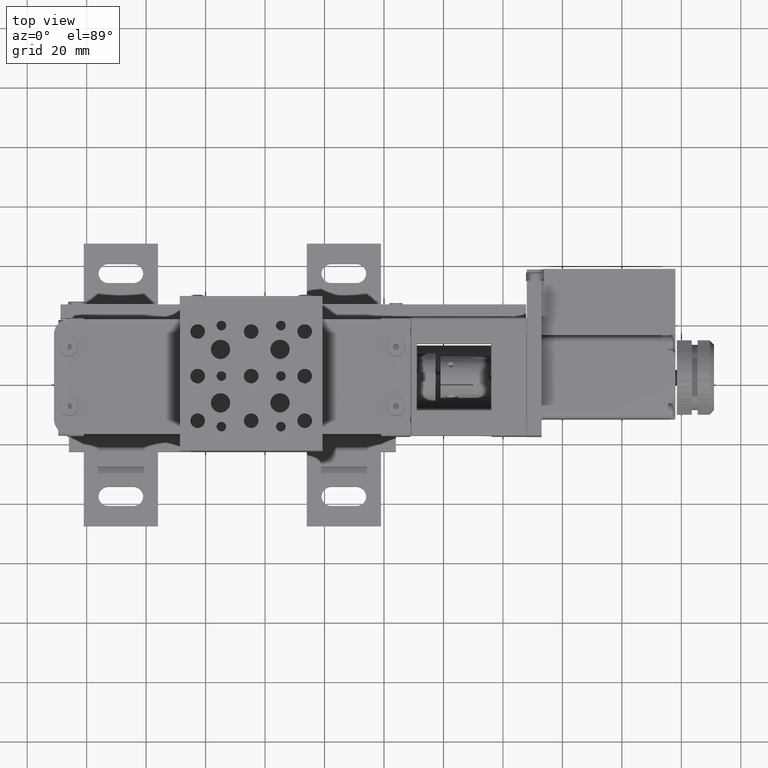
[diagram: clean part render]
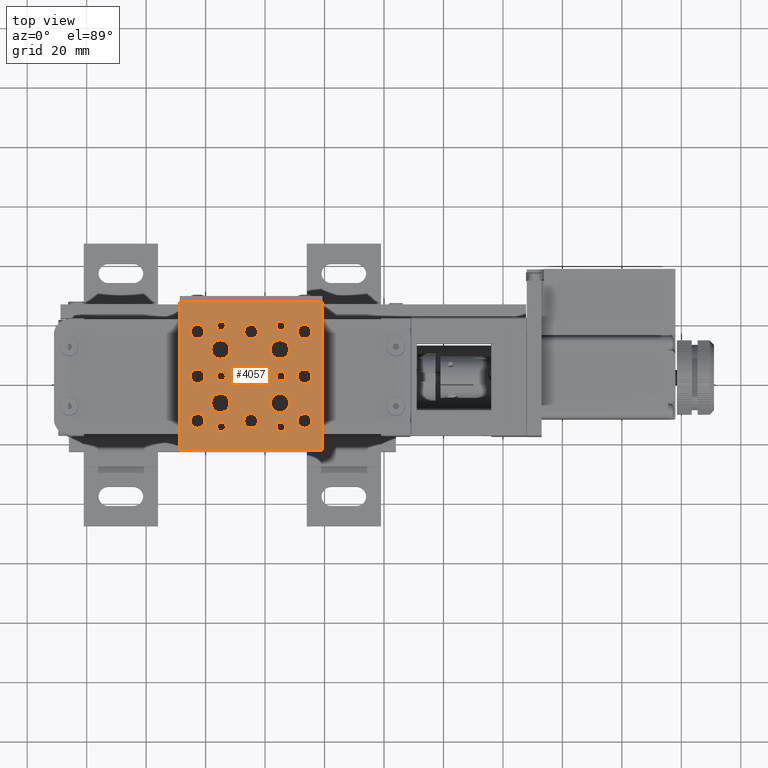
[diagram: same view with one face highlighted and labeled with its STEP entity id]
A machine part, top view. The second image highlights one B-rep face of the part: STEP entity #4057.
In plain terms, the highlighted planar face has unit normal (0, 0, 1).
Its self-contained STEP definition (entity closure, byte-faithful):
#184=FACE_BOUND('',#8873,.T.);
#185=FACE_BOUND('',#8874,.T.);
#186=FACE_BOUND('',#8875,.T.);
#187=FACE_BOUND('',#8876,.T.);
#188=FACE_BOUND('',#8877,.T.);
#189=FACE_BOUND('',#8878,.T.);
#190=FACE_BOUND('',#8879,.T.);
#191=FACE_BOUND('',#8880,.T.);
#192=FACE_BOUND('',#8881,.T.);
#193=FACE_BOUND('',#8882,.T.);
#194=FACE_BOUND('',#8883,.T.);
#195=FACE_BOUND('',#8884,.T.);
#196=FACE_BOUND('',#8885,.T.);
#197=FACE_BOUND('',#8886,.T.);
#198=FACE_BOUND('',#8887,.T.);
#199=FACE_BOUND('',#8888,.T.);
#200=FACE_BOUND('',#8889,.T.);
#201=FACE_BOUND('',#8890,.T.);
#202=FACE_BOUND('',#8891,.T.);
#1911=PLANE('',#42931);
#4057=ADVANCED_FACE('',(#6380,#184,#185,#186,#187,#188,#189,#190,#191,#192,
#193,#194,#195,#196,#197,#198,#199,#200,#201,#202),#1911,.T.);
#6380=FACE_OUTER_BOUND('',#8872,.T.);
#8872=EDGE_LOOP('',(#21142,#21143,#21144,#21145));
#8873=EDGE_LOOP('',(#21146,#21147,#21148,#21149));
#8874=EDGE_LOOP('',(#21150,#21151,#21152,#21153));
#8875=EDGE_LOOP('',(#21154,#21155,#21156,#21157));
#8876=EDGE_LOOP('',(#21158,#21159,#21160,#21161));
#8877=EDGE_LOOP('',(#21162,#21163,#21164,#21165));
#8878=EDGE_LOOP('',(#21166,#21167,#21168,#21169));
#8879=EDGE_LOOP('',(#21170,#21171,#21172,#21173));
#8880=EDGE_LOOP('',(#21174,#21175,#21176,#21177));
#8881=EDGE_LOOP('',(#21178,#21179,#21180,#21181));
#8882=EDGE_LOOP('',(#21182,#21183,#21184,#21185));
#8883=EDGE_LOOP('',(#21186,#21187,#21188,#21189));
#8884=EDGE_LOOP('',(#21190,#21191,#21192,#21193));
#8885=EDGE_LOOP('',(#21194,#21195,#21196,#21197));
#8886=EDGE_LOOP('',(#21198,#21199,#21200,#21201));
#8887=EDGE_LOOP('',(#21202,#21203,#21204,#21205));
#8888=EDGE_LOOP('',(#21206,#21207));
#8889=EDGE_LOOP('',(#21208,#21209));
#8890=EDGE_LOOP('',(#21210,#21211));
#8891=EDGE_LOOP('',(#21212,#21213));
#21142=ORIENTED_EDGE('',*,*,#28789,.F.);
#21143=ORIENTED_EDGE('',*,*,#28786,.F.);
#21144=ORIENTED_EDGE('',*,*,#28782,.F.);
#21145=ORIENTED_EDGE('',*,*,#28544,.F.);
#21146=ORIENTED_EDGE('',*,*,#28615,.T.);
#21147=ORIENTED_EDGE('',*,*,#29140,.T.);
#21148=ORIENTED_EDGE('',*,*,#28614,.T.);
#21149=ORIENTED_EDGE('',*,*,#28613,.T.);
#21150=ORIENTED_EDGE('',*,*,#28621,.T.);
#21151=ORIENTED_EDGE('',*,*,#28620,.T.);
#21152=ORIENTED_EDGE('',*,*,#28619,.T.);
#21153=ORIENTED_EDGE('',*,*,#29143,.T.);
#21154=ORIENTED_EDGE('',*,*,#28630,.T.);
#21155=ORIENTED_EDGE('',*,*,#28629,.T.);
#21156=ORIENTED_EDGE('',*,*,#28628,.T.);
#21157=ORIENTED_EDGE('',*,*,#29146,.T.);
#21158=ORIENTED_EDGE('',*,*,#28639,.T.);
#21159=ORIENTED_EDGE('',*,*,#28638,.T.);
#21160=ORIENTED_EDGE('',*,*,#28637,.T.);
#21161=ORIENTED_EDGE('',*,*,#29149,.T.);
#21162=ORIENTED_EDGE('',*,*,#28646,.T.);
#21163=ORIENTED_EDGE('',*,*,#28645,.T.);
#21164=ORIENTED_EDGE('',*,*,#28644,.T.);
#21165=ORIENTED_EDGE('',*,*,#29152,.T.);
#21166=ORIENTED_EDGE('',*,*,#28656,.T.);
#21167=ORIENTED_EDGE('',*,*,#29155,.T.);
#21168=ORIENTED_EDGE('',*,*,#28655,.T.);
#21169=ORIENTED_EDGE('',*,*,#28654,.T.);
#21170=ORIENTED_EDGE('',*,*,#28668,.T.);
#21171=ORIENTED_EDGE('',*,*,#28667,.T.);
#21172=ORIENTED_EDGE('',*,*,#28666,.T.);
#21173=ORIENTED_EDGE('',*,*,#29158,.T.);
#21174=ORIENTED_EDGE('',*,*,#28675,.T.);
#21175=ORIENTED_EDGE('',*,*,#28674,.T.);
#21176=ORIENTED_EDGE('',*,*,#28673,.T.);
#21177=ORIENTED_EDGE('',*,*,#29161,.T.);
#21178=ORIENTED_EDGE('',*,*,#28682,.T.);
#21179=ORIENTED_EDGE('',*,*,#28681,.T.);
#21180=ORIENTED_EDGE('',*,*,#28680,.T.);
#21181=ORIENTED_EDGE('',*,*,#29164,.T.);
#21182=ORIENTED_EDGE('',*,*,#28689,.T.);
#21183=ORIENTED_EDGE('',*,*,#28688,.T.);
#21184=ORIENTED_EDGE('',*,*,#28687,.T.);
#21185=ORIENTED_EDGE('',*,*,#29167,.T.);
#21186=ORIENTED_EDGE('',*,*,#28696,.T.);
#21187=ORIENTED_EDGE('',*,*,#28695,.T.);
#21188=ORIENTED_EDGE('',*,*,#28694,.T.);
#21189=ORIENTED_EDGE('',*,*,#29170,.T.);
#21190=ORIENTED_EDGE('',*,*,#28703,.T.);
#21191=ORIENTED_EDGE('',*,*,#28702,.T.);
#21192=ORIENTED_EDGE('',*,*,#28701,.T.);
#21193=ORIENTED_EDGE('',*,*,#29173,.T.);
#21194=ORIENTED_EDGE('',*,*,#28710,.T.);
#21195=ORIENTED_EDGE('',*,*,#28709,.T.);
#21196=ORIENTED_EDGE('',*,*,#28708,.T.);
#21197=ORIENTED_EDGE('',*,*,#29176,.T.);
#21198=ORIENTED_EDGE('',*,*,#28717,.T.);
#21199=ORIENTED_EDGE('',*,*,#28716,.T.);
#21200=ORIENTED_EDGE('',*,*,#28715,.T.);
#21201=ORIENTED_EDGE('',*,*,#29179,.T.);
#21202=ORIENTED_EDGE('',*,*,#28724,.T.);
#21203=ORIENTED_EDGE('',*,*,#28723,.T.);
#21204=ORIENTED_EDGE('',*,*,#28722,.T.);
#21205=ORIENTED_EDGE('',*,*,#29182,.T.);
#21206=ORIENTED_EDGE('',*,*,#28731,.T.);
#21207=ORIENTED_EDGE('',*,*,#28730,.T.);
#21208=ORIENTED_EDGE('',*,*,#28742,.T.);
#21209=ORIENTED_EDGE('',*,*,#28741,.T.);
#21210=ORIENTED_EDGE('',*,*,#28753,.T.);
#21211=ORIENTED_EDGE('',*,*,#28752,.T.);
#21212=ORIENTED_EDGE('',*,*,#28764,.T.);
#21213=ORIENTED_EDGE('',*,*,#28763,.T.);
#28544=EDGE_CURVE('',#39967,#39968,#33400,.T.);
#28613=EDGE_CURVE('',#40016,#40017,#35571,.T.);
#28614=EDGE_CURVE('',#40018,#40016,#35572,.T.);
#28615=EDGE_CURVE('',#40017,#40329,#35573,.T.);
#28619=EDGE_CURVE('',#40020,#40331,#35576,.T.);
#28620=EDGE_CURVE('',#40022,#40020,#35577,.T.);
#28621=EDGE_CURVE('',#40021,#40022,#35578,.T.);
#28628=EDGE_CURVE('',#40028,#40333,#35583,.T.);
#28629=EDGE_CURVE('',#40030,#40028,#35584,.T.);
#28630=EDGE_CURVE('',#40029,#40030,#35585,.T.);
#28637=EDGE_CURVE('',#40035,#40335,#35590,.T.);
#28638=EDGE_CURVE('',#40037,#40035,#35591,.T.);
#28639=EDGE_CURVE('',#40036,#40037,#35592,.T.);
#28644=EDGE_CURVE('',#40040,#40337,#35596,.T.);
#28645=EDGE_CURVE('',#40042,#40040,#35597,.T.);
#28646=EDGE_CURVE('',#40041,#40042,#35598,.T.);
#28654=EDGE_CURVE('',#40049,#40050,#35604,.T.);
#28655=EDGE_CURVE('',#40051,#40049,#35605,.T.);
#28656=EDGE_CURVE('',#40050,#40339,#35606,.T.);
#28666=EDGE_CURVE('',#40057,#40341,#35611,.T.);
#28667=EDGE_CURVE('',#40059,#40057,#35612,.T.);
#28668=EDGE_CURVE('',#40058,#40059,#35613,.T.);
#28673=EDGE_CURVE('',#40063,#40343,#35617,.T.);
#28674=EDGE_CURVE('',#40065,#40063,#35618,.T.);
#28675=EDGE_CURVE('',#40064,#40065,#35619,.T.);
#28680=EDGE_CURVE('',#40069,#40345,#35623,.T.);
#28681=EDGE_CURVE('',#40071,#40069,#35624,.T.);
#28682=EDGE_CURVE('',#40070,#40071,#35625,.T.);
#28687=EDGE_CURVE('',#40075,#40347,#35629,.T.);
#28688=EDGE_CURVE('',#40077,#40075,#35630,.T.);
#28689=EDGE_CURVE('',#40076,#40077,#35631,.T.);
#28694=EDGE_CURVE('',#40081,#40349,#35635,.T.);
#28695=EDGE_CURVE('',#40083,#40081,#35636,.T.);
#28696=EDGE_CURVE('',#40082,#40083,#35637,.T.);
#28701=EDGE_CURVE('',#40087,#40351,#35641,.T.);
#28702=EDGE_CURVE('',#40089,#40087,#35642,.T.);
#28703=EDGE_CURVE('',#40088,#40089,#35643,.T.);
#28708=EDGE_CURVE('',#40093,#40353,#35647,.T.);
#28709=EDGE_CURVE('',#40095,#40093,#35648,.T.);
#28710=EDGE_CURVE('',#40094,#40095,#35649,.T.);
#28715=EDGE_CURVE('',#40099,#40355,#35653,.T.);
#28716=EDGE_CURVE('',#40101,#40099,#35654,.T.);
#28717=EDGE_CURVE('',#40100,#40101,#35655,.T.);
#28722=EDGE_CURVE('',#40105,#40357,#35659,.T.);
#28723=EDGE_CURVE('',#40107,#40105,#35660,.T.);
#28724=EDGE_CURVE('',#40106,#40107,#35661,.T.);
#28730=EDGE_CURVE('',#40112,#40113,#35666,.T.);
#28731=EDGE_CURVE('',#40113,#40112,#35667,.T.);
#28741=EDGE_CURVE('',#40119,#40120,#35674,.T.);
#28742=EDGE_CURVE('',#40120,#40119,#35675,.T.);
#28752=EDGE_CURVE('',#40126,#40127,#35682,.T.);
#28753=EDGE_CURVE('',#40127,#40126,#35683,.T.);
#28763=EDGE_CURVE('',#40133,#40134,#35690,.T.);
#28764=EDGE_CURVE('',#40134,#40133,#35691,.T.);
#28782=EDGE_CURVE('',#39968,#40144,#33472,.T.);
#28786=EDGE_CURVE('',#40144,#40146,#33476,.T.);
#28789=EDGE_CURVE('',#40146,#39967,#33479,.T.);
#29140=EDGE_CURVE('',#40329,#40018,#35879,.T.);
#29143=EDGE_CURVE('',#40331,#40021,#35881,.T.);
#29146=EDGE_CURVE('',#40333,#40029,#35883,.T.);
#29149=EDGE_CURVE('',#40335,#40036,#35885,.T.);
#29152=EDGE_CURVE('',#40337,#40041,#35887,.T.);
#29155=EDGE_CURVE('',#40339,#40051,#35889,.T.);
#29158=EDGE_CURVE('',#40341,#40058,#35891,.T.);
#29161=EDGE_CURVE('',#40343,#40064,#35893,.T.);
#29164=EDGE_CURVE('',#40345,#40070,#35895,.T.);
#29167=EDGE_CURVE('',#40347,#40076,#35897,.T.);
#29170=EDGE_CURVE('',#40349,#40082,#35899,.T.);
#29173=EDGE_CURVE('',#40351,#40088,#35901,.T.);
#29176=EDGE_CURVE('',#40353,#40094,#35903,.T.);
#29179=EDGE_CURVE('',#40355,#40100,#35905,.T.);
#29182=EDGE_CURVE('',#40357,#40106,#35907,.T.);
#33400=B_SPLINE_CURVE_WITH_KNOTS('',1,(#80575,#80576),.UNSPECIFIED.,.F.,
 .F.,(2,2),(0.,47.9999999999999),.UNSPECIFIED.);
#33472=B_SPLINE_CURVE_WITH_KNOTS('',1,(#81433,#81434),.UNSPECIFIED.,.F.,
 .F.,(2,2),(0.,50.),.UNSPECIFIED.);
#33476=B_SPLINE_CURVE_WITH_KNOTS('',1,(#81441,#81442),.UNSPECIFIED.,.F.,
 .F.,(2,2),(0.,48.0000000000001),.UNSPECIFIED.);
#33479=B_SPLINE_CURVE_WITH_KNOTS('',1,(#81447,#81448),.UNSPECIFIED.,.F.,
 .F.,(2,2),(0.,50.),.UNSPECIFIED.);
#35571=(
BOUNDED_CURVE()
B_SPLINE_CURVE(2,(#80783,#80784,#80785),.UNSPECIFIED.,.F.,.F.)
B_SPLINE_CURVE_WITH_KNOTS((3,3),(-2.54626084573452,0.),.UNSPECIFIED.)
CURVE()
GEOMETRIC_REPRESENTATION_ITEM()
RATIONAL_B_SPLINE_CURVE((1.,0.707106781186549,1.))
REPRESENTATION_ITEM('')
);
#35572=(
BOUNDED_CURVE()
B_SPLINE_CURVE(2,(#80786,#80787,#80788),.UNSPECIFIED.,.F.,.F.)
B_SPLINE_CURVE_WITH_KNOTS((3,3),(-5.09252169146906,-2.54626084573452),
 .UNSPECIFIED.)
CURVE()
GEOMETRIC_REPRESENTATION_ITEM()
RATIONAL_B_SPLINE_CURVE((1.,0.707106781186548,1.))
REPRESENTATION_ITEM('')
);
#35573=(
BOUNDED_CURVE()
B_SPLINE_CURVE(2,(#80789,#80790,#80791),.UNSPECIFIED.,.F.,.F.)
B_SPLINE_CURVE_WITH_KNOTS((3,3),(-5.09252169146906,-2.54626084573454),
 .UNSPECIFIED.)
CURVE()
GEOMETRIC_REPRESENTATION_ITEM()
RATIONAL_B_SPLINE_CURVE((1.,0.707106781186549,1.))
REPRESENTATION_ITEM('')
);
#35576=(
BOUNDED_CURVE()
B_SPLINE_CURVE(2,(#80802,#80803,#80804),.UNSPECIFIED.,.F.,.F.)
B_SPLINE_CURVE_WITH_KNOTS((3,3),(-5.09252169146905,-2.54626084573453),
 .UNSPECIFIED.)
CURVE()
GEOMETRIC_REPRESENTATION_ITEM()
RATIONAL_B_SPLINE_CURVE((1.,0.707106781186548,1.))
REPRESENTATION_ITEM('')
);
#35577=(
BOUNDED_CURVE()
B_SPLINE_CURVE(2,(#80805,#80806,#80807),.UNSPECIFIED.,.F.,.F.)
B_SPLINE_CURVE_WITH_KNOTS((3,3),(-2.54626084573453,0.),.UNSPECIFIED.)
CURVE()
GEOMETRIC_REPRESENTATION_ITEM()
RATIONAL_B_SPLINE_CURVE((1.,0.707106781186548,1.))
REPRESENTATION_ITEM('')
);
#35578=(
BOUNDED_CURVE()
B_SPLINE_CURVE(2,(#80808,#80809,#80810),.UNSPECIFIED.,.F.,.F.)
B_SPLINE_CURVE_WITH_KNOTS((3,3),(-5.09252169146905,-2.54626084573453),
 .UNSPECIFIED.)
CURVE()
GEOMETRIC_REPRESENTATION_ITEM()
RATIONAL_B_SPLINE_CURVE((1.,0.707106781186548,1.))
REPRESENTATION_ITEM('')
);
#35583=(
BOUNDED_CURVE()
B_SPLINE_CURVE(2,(#80861,#80862,#80863),.UNSPECIFIED.,.F.,.F.)
B_SPLINE_CURVE_WITH_KNOTS((3,3),(-5.09252169146906,-3.15736344871081),
 .UNSPECIFIED.)
CURVE()
GEOMETRIC_REPRESENTATION_ITEM()
RATIONAL_B_SPLINE_CURVE((1.,0.827080574274561,1.))
REPRESENTATION_ITEM('')
);
#35584=(
BOUNDED_CURVE()
B_SPLINE_CURVE(2,(#80864,#80865,#80866,#80867,#80868),.UNSPECIFIED.,.F.,
 .F.)
B_SPLINE_CURVE_WITH_KNOTS((3,2,3),(-3.15736344871081,-1.57868172435541,
0.),.UNSPECIFIED.)
CURVE()
GEOMETRIC_REPRESENTATION_ITEM()
RATIONAL_B_SPLINE_CURVE((1.,0.883765630088693,1.,0.883765630088693,1.))
REPRESENTATION_ITEM('')
);
#35585=(
BOUNDED_CURVE()
B_SPLINE_CURVE(2,(#80869,#80870,#80871),.UNSPECIFIED.,.F.,.F.)
B_SPLINE_CURVE_WITH_KNOTS((3,3),(-5.09252169146906,-3.15736344871081),
 .UNSPECIFIED.)
CURVE()
GEOMETRIC_REPRESENTATION_ITEM()
RATIONAL_B_SPLINE_CURVE((1.,0.827080574274561,1.))
REPRESENTATION_ITEM('')
);
#35590=(
BOUNDED_CURVE()
B_SPLINE_CURVE(2,(#80924,#80925,#80926),.UNSPECIFIED.,.F.,.F.)
B_SPLINE_CURVE_WITH_KNOTS((3,3),(-5.09252169146906,-3.15736344871081),
 .UNSPECIFIED.)
CURVE()
GEOMETRIC_REPRESENTATION_ITEM()
RATIONAL_B_SPLINE_CURVE((1.,0.827080574274561,1.))
REPRESENTATION_ITEM('')
);
#35591=(
BOUNDED_CURVE()
B_SPLINE_CURVE(2,(#80927,#80928,#80929,#80930,#80931),.UNSPECIFIED.,.F.,
 .F.)
B_SPLINE_CURVE_WITH_KNOTS((3,2,3),(-3.15736344871081,-1.57868172435541,
0.),.UNSPECIFIED.)
CURVE()
GEOMETRIC_REPRESENTATION_ITEM()
RATIONAL_B_SPLINE_CURVE((1.,0.883765630088694,1.,0.883765630088694,1.))
REPRESENTATION_ITEM('')
);
#35592=(
BOUNDED_CURVE()
B_SPLINE_CURVE(2,(#80932,#80933,#80934),.UNSPECIFIED.,.F.,.F.)
B_SPLINE_CURVE_WITH_KNOTS((3,3),(-5.09252169146906,-3.15736344871081),
 .UNSPECIFIED.)
CURVE()
GEOMETRIC_REPRESENTATION_ITEM()
RATIONAL_B_SPLINE_CURVE((1.,0.827080574274562,1.))
REPRESENTATION_ITEM('')
);
#35596=(
BOUNDED_CURVE()
B_SPLINE_CURVE(2,(#80948,#80949,#80950),.UNSPECIFIED.,.F.,.F.)
B_SPLINE_CURVE_WITH_KNOTS((3,3),(-5.09252169146905,-2.54626084573453),
 .UNSPECIFIED.)
CURVE()
GEOMETRIC_REPRESENTATION_ITEM()
RATIONAL_B_SPLINE_CURVE((1.,0.707106781186548,1.))
REPRESENTATION_ITEM('')
);
#35597=(
BOUNDED_CURVE()
B_SPLINE_CURVE(2,(#80951,#80952,#80953),.UNSPECIFIED.,.F.,.F.)
B_SPLINE_CURVE_WITH_KNOTS((3,3),(-2.54626084573453,0.),.UNSPECIFIED.)
CURVE()
GEOMETRIC_REPRESENTATION_ITEM()
RATIONAL_B_SPLINE_CURVE((1.,0.707106781186548,1.))
REPRESENTATION_ITEM('')
);
#35598=(
BOUNDED_CURVE()
B_SPLINE_CURVE(2,(#80954,#80955,#80956),.UNSPECIFIED.,.F.,.F.)
B_SPLINE_CURVE_WITH_KNOTS((3,3),(-5.09252169146905,-2.54626084573453),
 .UNSPECIFIED.)
CURVE()
GEOMETRIC_REPRESENTATION_ITEM()
RATIONAL_B_SPLINE_CURVE((1.,0.707106781186546,1.))
REPRESENTATION_ITEM('')
);
#35604=(
BOUNDED_CURVE()
B_SPLINE_CURVE(2,(#81008,#81009,#81010),.UNSPECIFIED.,.F.,.F.)
B_SPLINE_CURVE_WITH_KNOTS((3,3),(-2.54626084573453,0.),.UNSPECIFIED.)
CURVE()
GEOMETRIC_REPRESENTATION_ITEM()
RATIONAL_B_SPLINE_CURVE((1.,0.707106781186548,1.))
REPRESENTATION_ITEM('')
);
#35605=(
BOUNDED_CURVE()
B_SPLINE_CURVE(2,(#81011,#81012,#81013),.UNSPECIFIED.,.F.,.F.)
B_SPLINE_CURVE_WITH_KNOTS((3,3),(-5.09252169146906,-2.54626084573453),
 .UNSPECIFIED.)
CURVE()
GEOMETRIC_REPRESENTATION_ITEM()
RATIONAL_B_SPLINE_CURVE((1.,0.707106781186548,1.))
REPRESENTATION_ITEM('')
);
#35606=(
BOUNDED_CURVE()
B_SPLINE_CURVE(2,(#81014,#81015,#81016),.UNSPECIFIED.,.F.,.F.)
B_SPLINE_CURVE_WITH_KNOTS((3,3),(-5.09252169146906,-2.54626084573453),
 .UNSPECIFIED.)
CURVE()
GEOMETRIC_REPRESENTATION_ITEM()
RATIONAL_B_SPLINE_CURVE((1.,0.707106781186548,1.))
REPRESENTATION_ITEM('')
);
#35611=(
BOUNDED_CURVE()
B_SPLINE_CURVE(2,(#81045,#81046,#81047),.UNSPECIFIED.,.F.,.F.)
B_SPLINE_CURVE_WITH_KNOTS((3,3),(-7.72360553885048,-3.86180276942522),
 .UNSPECIFIED.)
CURVE()
GEOMETRIC_REPRESENTATION_ITEM()
RATIONAL_B_SPLINE_CURVE((1.,0.707106781186545,1.))
REPRESENTATION_ITEM('')
);
#35612=(
BOUNDED_CURVE()
B_SPLINE_CURVE(2,(#81048,#81049,#81050),.UNSPECIFIED.,.F.,.F.)
B_SPLINE_CURVE_WITH_KNOTS((3,3),(-3.86180276942525,0.),.UNSPECIFIED.)
CURVE()
GEOMETRIC_REPRESENTATION_ITEM()
RATIONAL_B_SPLINE_CURVE((1.,0.707106781186545,1.))
REPRESENTATION_ITEM('')
);
#35613=(
BOUNDED_CURVE()
B_SPLINE_CURVE(2,(#81051,#81052,#81053),.UNSPECIFIED.,.F.,.F.)
B_SPLINE_CURVE_WITH_KNOTS((3,3),(-7.72360553885048,-3.86180276942525),
 .UNSPECIFIED.)
CURVE()
GEOMETRIC_REPRESENTATION_ITEM()
RATIONAL_B_SPLINE_CURVE((1.,0.707106781186549,1.))
REPRESENTATION_ITEM('')
);
#35617=(
BOUNDED_CURVE()
B_SPLINE_CURVE(2,(#81065,#81066,#81067),.UNSPECIFIED.,.F.,.F.)
B_SPLINE_CURVE_WITH_KNOTS((3,3),(-7.72360553885051,-3.86180276942525),
 .UNSPECIFIED.)
CURVE()
GEOMETRIC_REPRESENTATION_ITEM()
RATIONAL_B_SPLINE_CURVE((1.,0.707106781186548,1.))
REPRESENTATION_ITEM('')
);
#35618=(
BOUNDED_CURVE()
B_SPLINE_CURVE(2,(#81068,#81069,#81070),.UNSPECIFIED.,.F.,.F.)
B_SPLINE_CURVE_WITH_KNOTS((3,3),(-3.86180276942525,0.),.UNSPECIFIED.)
CURVE()
GEOMETRIC_REPRESENTATION_ITEM()
RATIONAL_B_SPLINE_CURVE((1.,0.707106781186548,1.))
REPRESENTATION_ITEM('')
);
#35619=(
BOUNDED_CURVE()
B_SPLINE_CURVE(2,(#81071,#81072,#81073),.UNSPECIFIED.,.F.,.F.)
B_SPLINE_CURVE_WITH_KNOTS((3,3),(-7.72360553885051,-3.86180276942525),
 .UNSPECIFIED.)
CURVE()
GEOMETRIC_REPRESENTATION_ITEM()
RATIONAL_B_SPLINE_CURVE((1.,0.707106781186548,1.))
REPRESENTATION_ITEM('')
);
#35623=(
BOUNDED_CURVE()
B_SPLINE_CURVE(2,(#81085,#81086,#81087),.UNSPECIFIED.,.F.,.F.)
B_SPLINE_CURVE_WITH_KNOTS((3,3),(-7.72360553885051,-3.86180276942525),
 .UNSPECIFIED.)
CURVE()
GEOMETRIC_REPRESENTATION_ITEM()
RATIONAL_B_SPLINE_CURVE((1.,0.707106781186548,1.))
REPRESENTATION_ITEM('')
);
#35624=(
BOUNDED_CURVE()
B_SPLINE_CURVE(2,(#81088,#81089,#81090),.UNSPECIFIED.,.F.,.F.)
B_SPLINE_CURVE_WITH_KNOTS((3,3),(-3.86180276942525,0.),.UNSPECIFIED.)
CURVE()
GEOMETRIC_REPRESENTATION_ITEM()
RATIONAL_B_SPLINE_CURVE((1.,0.707106781186548,1.))
REPRESENTATION_ITEM('')
);
#35625=(
BOUNDED_CURVE()
B_SPLINE_CURVE(2,(#81091,#81092,#81093),.UNSPECIFIED.,.F.,.F.)
B_SPLINE_CURVE_WITH_KNOTS((3,3),(-7.72360553885051,-3.86180276942525),
 .UNSPECIFIED.)
CURVE()
GEOMETRIC_REPRESENTATION_ITEM()
RATIONAL_B_SPLINE_CURVE((1.,0.70710678118655,1.))
REPRESENTATION_ITEM('')
);
#35629=(
BOUNDED_CURVE()
B_SPLINE_CURVE(2,(#81105,#81106,#81107),.UNSPECIFIED.,.F.,.F.)
B_SPLINE_CURVE_WITH_KNOTS((3,3),(-7.72360553885051,-3.86180276942525),
 .UNSPECIFIED.)
CURVE()
GEOMETRIC_REPRESENTATION_ITEM()
RATIONAL_B_SPLINE_CURVE((1.,0.707106781186548,1.))
REPRESENTATION_ITEM('')
);
#35630=(
BOUNDED_CURVE()
B_SPLINE_CURVE(2,(#81108,#81109,#81110),.UNSPECIFIED.,.F.,.F.)
B_SPLINE_CURVE_WITH_KNOTS((3,3),(-3.86180276942525,0.),.UNSPECIFIED.)
CURVE()
GEOMETRIC_REPRESENTATION_ITEM()
RATIONAL_B_SPLINE_CURVE((1.,0.707106781186548,1.))
REPRESENTATION_ITEM('')
);
#35631=(
BOUNDED_CURVE()
B_SPLINE_CURVE(2,(#81111,#81112,#81113),.UNSPECIFIED.,.F.,.F.)
B_SPLINE_CURVE_WITH_KNOTS((3,3),(-7.72360553885051,-3.86180276942525),
 .UNSPECIFIED.)
CURVE()
GEOMETRIC_REPRESENTATION_ITEM()
RATIONAL_B_SPLINE_CURVE((1.,0.70710678118655,1.))
REPRESENTATION_ITEM('')
);
#35635=(
BOUNDED_CURVE()
B_SPLINE_CURVE(2,(#81125,#81126,#81127),.UNSPECIFIED.,.F.,.F.)
B_SPLINE_CURVE_WITH_KNOTS((3,3),(-7.72360553885049,-3.86180276942524),
 .UNSPECIFIED.)
CURVE()
GEOMETRIC_REPRESENTATION_ITEM()
RATIONAL_B_SPLINE_CURVE((1.,0.707106781186547,1.))
REPRESENTATION_ITEM('')
);
#35636=(
BOUNDED_CURVE()
B_SPLINE_CURVE(2,(#81128,#81129,#81130),.UNSPECIFIED.,.F.,.F.)
B_SPLINE_CURVE_WITH_KNOTS((3,3),(-3.86180276942525,0.),.UNSPECIFIED.)
CURVE()
GEOMETRIC_REPRESENTATION_ITEM()
RATIONAL_B_SPLINE_CURVE((1.,0.707106781186547,1.))
REPRESENTATION_ITEM('')
);
#35637=(
BOUNDED_CURVE()
B_SPLINE_CURVE(2,(#81131,#81132,#81133),.UNSPECIFIED.,.F.,.F.)
B_SPLINE_CURVE_WITH_KNOTS((3,3),(-7.72360553885049,-3.86180276942525),
 .UNSPECIFIED.)
CURVE()
GEOMETRIC_REPRESENTATION_ITEM()
RATIONAL_B_SPLINE_CURVE((1.,0.707106781186549,1.))
REPRESENTATION_ITEM('')
);
#35641=(
BOUNDED_CURVE()
B_SPLINE_CURVE(2,(#81145,#81146,#81147),.UNSPECIFIED.,.F.,.F.)
B_SPLINE_CURVE_WITH_KNOTS((3,3),(-7.72360553885051,-3.86180276942525),
 .UNSPECIFIED.)
CURVE()
GEOMETRIC_REPRESENTATION_ITEM()
RATIONAL_B_SPLINE_CURVE((1.,0.707106781186548,1.))
REPRESENTATION_ITEM('')
);
#35642=(
BOUNDED_CURVE()
B_SPLINE_CURVE(2,(#81148,#81149,#81150),.UNSPECIFIED.,.F.,.F.)
B_SPLINE_CURVE_WITH_KNOTS((3,3),(-3.86180276942525,0.),.UNSPECIFIED.)
CURVE()
GEOMETRIC_REPRESENTATION_ITEM()
RATIONAL_B_SPLINE_CURVE((1.,0.707106781186548,1.))
REPRESENTATION_ITEM('')
);
#35643=(
BOUNDED_CURVE()
B_SPLINE_CURVE(2,(#81151,#81152,#81153),.UNSPECIFIED.,.F.,.F.)
B_SPLINE_CURVE_WITH_KNOTS((3,3),(-7.72360553885051,-3.86180276942525),
 .UNSPECIFIED.)
CURVE()
GEOMETRIC_REPRESENTATION_ITEM()
RATIONAL_B_SPLINE_CURVE((1.,0.707106781186548,1.))
REPRESENTATION_ITEM('')
);
#35647=(
BOUNDED_CURVE()
B_SPLINE_CURVE(2,(#81165,#81166,#81167),.UNSPECIFIED.,.F.,.F.)
B_SPLINE_CURVE_WITH_KNOTS((3,3),(-7.72360553885051,-3.86180276942526),
 .UNSPECIFIED.)
CURVE()
GEOMETRIC_REPRESENTATION_ITEM()
RATIONAL_B_SPLINE_CURVE((1.,0.707106781186548,1.))
REPRESENTATION_ITEM('')
);
#35648=(
BOUNDED_CURVE()
B_SPLINE_CURVE(2,(#81168,#81169,#81170),.UNSPECIFIED.,.F.,.F.)
B_SPLINE_CURVE_WITH_KNOTS((3,3),(-3.86180276942525,0.),.UNSPECIFIED.)
CURVE()
GEOMETRIC_REPRESENTATION_ITEM()
RATIONAL_B_SPLINE_CURVE((1.,0.707106781186548,1.))
REPRESENTATION_ITEM('')
);
#35649=(
BOUNDED_CURVE()
B_SPLINE_CURVE(2,(#81171,#81172,#81173),.UNSPECIFIED.,.F.,.F.)
B_SPLINE_CURVE_WITH_KNOTS((3,3),(-7.72360553885051,-3.86180276942525),
 .UNSPECIFIED.)
CURVE()
GEOMETRIC_REPRESENTATION_ITEM()
RATIONAL_B_SPLINE_CURVE((1.,0.707106781186548,1.))
REPRESENTATION_ITEM('')
);
#35653=(
BOUNDED_CURVE()
B_SPLINE_CURVE(2,(#81185,#81186,#81187),.UNSPECIFIED.,.F.,.F.)
B_SPLINE_CURVE_WITH_KNOTS((3,3),(-7.72360553885053,-3.86180276942527),
 .UNSPECIFIED.)
CURVE()
GEOMETRIC_REPRESENTATION_ITEM()
RATIONAL_B_SPLINE_CURVE((1.,0.707106781186549,1.))
REPRESENTATION_ITEM('')
);
#35654=(
BOUNDED_CURVE()
B_SPLINE_CURVE(2,(#81188,#81189,#81190),.UNSPECIFIED.,.F.,.F.)
B_SPLINE_CURVE_WITH_KNOTS((3,3),(-3.86180276942525,0.),.UNSPECIFIED.)
CURVE()
GEOMETRIC_REPRESENTATION_ITEM()
RATIONAL_B_SPLINE_CURVE((1.,0.707106781186549,1.))
REPRESENTATION_ITEM('')
);
#35655=(
BOUNDED_CURVE()
B_SPLINE_CURVE(2,(#81191,#81192,#81193),.UNSPECIFIED.,.F.,.F.)
B_SPLINE_CURVE_WITH_KNOTS((3,3),(-7.72360553885052,-3.86180276942525),
 .UNSPECIFIED.)
CURVE()
GEOMETRIC_REPRESENTATION_ITEM()
RATIONAL_B_SPLINE_CURVE((1.,0.707106781186548,1.))
REPRESENTATION_ITEM('')
);
#35659=(
BOUNDED_CURVE()
B_SPLINE_CURVE(2,(#81205,#81206,#81207),.UNSPECIFIED.,.F.,.F.)
B_SPLINE_CURVE_WITH_KNOTS((3,3),(-7.72360553885044,-3.8618027694252),
 .UNSPECIFIED.)
CURVE()
GEOMETRIC_REPRESENTATION_ITEM()
RATIONAL_B_SPLINE_CURVE((1.,0.707106781186544,1.))
REPRESENTATION_ITEM('')
);
#35660=(
BOUNDED_CURVE()
B_SPLINE_CURVE(2,(#81208,#81209,#81210),.UNSPECIFIED.,.F.,.F.)
B_SPLINE_CURVE_WITH_KNOTS((3,3),(-3.86180276942524,0.),.UNSPECIFIED.)
CURVE()
GEOMETRIC_REPRESENTATION_ITEM()
RATIONAL_B_SPLINE_CURVE((1.,0.707106781186544,1.))
REPRESENTATION_ITEM('')
);
#35661=(
BOUNDED_CURVE()
B_SPLINE_CURVE(2,(#81211,#81212,#81213),.UNSPECIFIED.,.F.,.F.)
B_SPLINE_CURVE_WITH_KNOTS((3,3),(-7.72360553885044,-3.86180276942524),
 .UNSPECIFIED.)
CURVE()
GEOMETRIC_REPRESENTATION_ITEM()
RATIONAL_B_SPLINE_CURVE((1.,0.707106781186552,1.))
REPRESENTATION_ITEM('')
);
#35666=(
BOUNDED_CURVE()
B_SPLINE_CURVE(2,(#81230,#81231,#81232,#81233,#81234),.UNSPECIFIED.,.F.,
 .F.)
B_SPLINE_CURVE_WITH_KNOTS((3,2,3),(-10.2101761241668,-5.10508806208341,
0.),.UNSPECIFIED.)
CURVE()
GEOMETRIC_REPRESENTATION_ITEM()
RATIONAL_B_SPLINE_CURVE((1.,0.707106781186548,1.,0.707106781186548,1.))
REPRESENTATION_ITEM('')
);
#35667=(
BOUNDED_CURVE()
B_SPLINE_CURVE(2,(#81235,#81236,#81237,#81238,#81239),.UNSPECIFIED.,.F.,
 .F.)
B_SPLINE_CURVE_WITH_KNOTS((3,2,3),(-10.2101761241668,-5.10508806208341,
0.),.UNSPECIFIED.)
CURVE()
GEOMETRIC_REPRESENTATION_ITEM()
RATIONAL_B_SPLINE_CURVE((1.,0.707106781186548,1.,0.707106781186548,1.))
REPRESENTATION_ITEM('')
);
#35674=(
BOUNDED_CURVE()
B_SPLINE_CURVE(2,(#81276,#81277,#81278,#81279,#81280),.UNSPECIFIED.,.F.,
 .F.)
B_SPLINE_CURVE_WITH_KNOTS((3,2,3),(-10.2101761241668,-5.10508806208341,
0.),.UNSPECIFIED.)
CURVE()
GEOMETRIC_REPRESENTATION_ITEM()
RATIONAL_B_SPLINE_CURVE((1.,0.707106781186548,1.,0.707106781186548,1.))
REPRESENTATION_ITEM('')
);
#35675=(
BOUNDED_CURVE()
B_SPLINE_CURVE(2,(#81281,#81282,#81283,#81284,#81285),.UNSPECIFIED.,.F.,
 .F.)
B_SPLINE_CURVE_WITH_KNOTS((3,2,3),(-10.2101761241668,-5.10508806208341,
0.),.UNSPECIFIED.)
CURVE()
GEOMETRIC_REPRESENTATION_ITEM()
RATIONAL_B_SPLINE_CURVE((1.,0.707106781186548,1.,0.707106781186548,1.))
REPRESENTATION_ITEM('')
);
#35682=(
BOUNDED_CURVE()
B_SPLINE_CURVE(2,(#81322,#81323,#81324,#81325,#81326),.UNSPECIFIED.,.F.,
 .F.)
B_SPLINE_CURVE_WITH_KNOTS((3,2,3),(-10.2101761241668,-5.10508806208341,
0.),.UNSPECIFIED.)
CURVE()
GEOMETRIC_REPRESENTATION_ITEM()
RATIONAL_B_SPLINE_CURVE((1.,0.707106781186548,1.,0.707106781186548,1.))
REPRESENTATION_ITEM('')
);
#35683=(
BOUNDED_CURVE()
B_SPLINE_CURVE(2,(#81327,#81328,#81329,#81330,#81331),.UNSPECIFIED.,.F.,
 .F.)
B_SPLINE_CURVE_WITH_KNOTS((3,2,3),(-10.2101761241668,-5.10508806208341,
0.),.UNSPECIFIED.)
CURVE()
GEOMETRIC_REPRESENTATION_ITEM()
RATIONAL_B_SPLINE_CURVE((1.,0.707106781186548,1.,0.707106781186548,1.))
REPRESENTATION_ITEM('')
);
#35690=(
BOUNDED_CURVE()
B_SPLINE_CURVE(2,(#81368,#81369,#81370,#81371,#81372),.UNSPECIFIED.,.F.,
 .F.)
B_SPLINE_CURVE_WITH_KNOTS((3,2,3),(-10.2101761241668,-5.10508806208341,
0.),.UNSPECIFIED.)
CURVE()
GEOMETRIC_REPRESENTATION_ITEM()
RATIONAL_B_SPLINE_CURVE((1.,0.707106781186548,1.,0.707106781186548,1.))
REPRESENTATION_ITEM('')
);
#35691=(
BOUNDED_CURVE()
B_SPLINE_CURVE(2,(#81373,#81374,#81375,#81376,#81377),.UNSPECIFIED.,.F.,
 .F.)
B_SPLINE_CURVE_WITH_KNOTS((3,2,3),(-10.2101761241668,-5.10508806208341,
0.),.UNSPECIFIED.)
CURVE()
GEOMETRIC_REPRESENTATION_ITEM()
RATIONAL_B_SPLINE_CURVE((1.,0.707106781186548,1.,0.707106781186548,1.))
REPRESENTATION_ITEM('')
);
#35879=(
BOUNDED_CURVE()
B_SPLINE_CURVE(2,(#82843,#82844,#82845),.UNSPECIFIED.,.F.,.F.)
B_SPLINE_CURVE_WITH_KNOTS((3,3),(-2.54626084573454,0.),.UNSPECIFIED.)
CURVE()
GEOMETRIC_REPRESENTATION_ITEM()
RATIONAL_B_SPLINE_CURVE((1.,0.707106781186546,1.))
REPRESENTATION_ITEM('')
);
#35881=(
BOUNDED_CURVE()
B_SPLINE_CURVE(2,(#82851,#82852,#82853),.UNSPECIFIED.,.F.,.F.)
B_SPLINE_CURVE_WITH_KNOTS((3,3),(-2.54626084573453,0.),.UNSPECIFIED.)
CURVE()
GEOMETRIC_REPRESENTATION_ITEM()
RATIONAL_B_SPLINE_CURVE((1.,0.707106781186548,1.))
REPRESENTATION_ITEM('')
);
#35883=(
BOUNDED_CURVE()
B_SPLINE_CURVE(2,(#82859,#82860,#82861,#82862,#82863),.UNSPECIFIED.,.F.,
 .F.)
B_SPLINE_CURVE_WITH_KNOTS((3,2,3),(-3.15736344871081,-1.5786817243554,0.),
 .UNSPECIFIED.)
CURVE()
GEOMETRIC_REPRESENTATION_ITEM()
RATIONAL_B_SPLINE_CURVE((1.,0.883765630088694,1.,0.883765630088694,1.))
REPRESENTATION_ITEM('')
);
#35885=(
BOUNDED_CURVE()
B_SPLINE_CURVE(2,(#82869,#82870,#82871,#82872,#82873),.UNSPECIFIED.,.F.,
 .F.)
B_SPLINE_CURVE_WITH_KNOTS((3,2,3),(-3.15736344871081,-1.57868172435541,
0.),.UNSPECIFIED.)
CURVE()
GEOMETRIC_REPRESENTATION_ITEM()
RATIONAL_B_SPLINE_CURVE((1.,0.883765630088694,1.,0.883765630088694,1.))
REPRESENTATION_ITEM('')
);
#35887=(
BOUNDED_CURVE()
B_SPLINE_CURVE(2,(#82879,#82880,#82881),.UNSPECIFIED.,.F.,.F.)
B_SPLINE_CURVE_WITH_KNOTS((3,3),(-2.54626084573453,0.),.UNSPECIFIED.)
CURVE()
GEOMETRIC_REPRESENTATION_ITEM()
RATIONAL_B_SPLINE_CURVE((1.,0.707106781186548,1.))
REPRESENTATION_ITEM('')
);
#35889=(
BOUNDED_CURVE()
B_SPLINE_CURVE(2,(#82887,#82888,#82889),.UNSPECIFIED.,.F.,.F.)
B_SPLINE_CURVE_WITH_KNOTS((3,3),(-2.54626084573453,0.),.UNSPECIFIED.)
CURVE()
GEOMETRIC_REPRESENTATION_ITEM()
RATIONAL_B_SPLINE_CURVE((1.,0.707106781186548,1.))
REPRESENTATION_ITEM('')
);
#35891=(
BOUNDED_CURVE()
B_SPLINE_CURVE(2,(#82895,#82896,#82897),.UNSPECIFIED.,.F.,.F.)
B_SPLINE_CURVE_WITH_KNOTS((3,3),(-3.86180276942522,0.),.UNSPECIFIED.)
CURVE()
GEOMETRIC_REPRESENTATION_ITEM()
RATIONAL_B_SPLINE_CURVE((1.,0.70710678118655,1.))
REPRESENTATION_ITEM('')
);
#35893=(
BOUNDED_CURVE()
B_SPLINE_CURVE(2,(#82903,#82904,#82905),.UNSPECIFIED.,.F.,.F.)
B_SPLINE_CURVE_WITH_KNOTS((3,3),(-3.86180276942525,0.),.UNSPECIFIED.)
CURVE()
GEOMETRIC_REPRESENTATION_ITEM()
RATIONAL_B_SPLINE_CURVE((1.,0.707106781186548,1.))
REPRESENTATION_ITEM('')
);
#35895=(
BOUNDED_CURVE()
B_SPLINE_CURVE(2,(#82911,#82912,#82913),.UNSPECIFIED.,.F.,.F.)
B_SPLINE_CURVE_WITH_KNOTS((3,3),(-3.86180276942525,0.),.UNSPECIFIED.)
CURVE()
GEOMETRIC_REPRESENTATION_ITEM()
RATIONAL_B_SPLINE_CURVE((1.,0.707106781186548,1.))
REPRESENTATION_ITEM('')
);
#35897=(
BOUNDED_CURVE()
B_SPLINE_CURVE(2,(#82919,#82920,#82921),.UNSPECIFIED.,.F.,.F.)
B_SPLINE_CURVE_WITH_KNOTS((3,3),(-3.86180276942525,0.),.UNSPECIFIED.)
CURVE()
GEOMETRIC_REPRESENTATION_ITEM()
RATIONAL_B_SPLINE_CURVE((1.,0.707106781186548,1.))
REPRESENTATION_ITEM('')
);
#35899=(
BOUNDED_CURVE()
B_SPLINE_CURVE(2,(#82927,#82928,#82929),.UNSPECIFIED.,.F.,.F.)
B_SPLINE_CURVE_WITH_KNOTS((3,3),(-3.86180276942524,0.),.UNSPECIFIED.)
CURVE()
GEOMETRIC_REPRESENTATION_ITEM()
RATIONAL_B_SPLINE_CURVE((1.,0.707106781186549,1.))
REPRESENTATION_ITEM('')
);
#35901=(
BOUNDED_CURVE()
B_SPLINE_CURVE(2,(#82935,#82936,#82937),.UNSPECIFIED.,.F.,.F.)
B_SPLINE_CURVE_WITH_KNOTS((3,3),(-3.86180276942525,0.),.UNSPECIFIED.)
CURVE()
GEOMETRIC_REPRESENTATION_ITEM()
RATIONAL_B_SPLINE_CURVE((1.,0.707106781186548,1.))
REPRESENTATION_ITEM('')
);
#35903=(
BOUNDED_CURVE()
B_SPLINE_CURVE(2,(#82943,#82944,#82945),.UNSPECIFIED.,.F.,.F.)
B_SPLINE_CURVE_WITH_KNOTS((3,3),(-3.86180276942526,0.),.UNSPECIFIED.)
CURVE()
GEOMETRIC_REPRESENTATION_ITEM()
RATIONAL_B_SPLINE_CURVE((1.,0.707106781186547,1.))
REPRESENTATION_ITEM('')
);
#35905=(
BOUNDED_CURVE()
B_SPLINE_CURVE(2,(#82951,#82952,#82953),.UNSPECIFIED.,.F.,.F.)
B_SPLINE_CURVE_WITH_KNOTS((3,3),(-3.86180276942527,0.),.UNSPECIFIED.)
CURVE()
GEOMETRIC_REPRESENTATION_ITEM()
RATIONAL_B_SPLINE_CURVE((1.,0.707106781186546,1.))
REPRESENTATION_ITEM('')
);
#35907=(
BOUNDED_CURVE()
B_SPLINE_CURVE(2,(#82959,#82960,#82961),.UNSPECIFIED.,.F.,.F.)
B_SPLINE_CURVE_WITH_KNOTS((3,3),(-3.8618027694252,0.),.UNSPECIFIED.)
CURVE()
GEOMETRIC_REPRESENTATION_ITEM()
RATIONAL_B_SPLINE_CURVE((1.,0.707106781186551,1.))
REPRESENTATION_ITEM('')
);
#39967=VERTEX_POINT('',#61284);
#39968=VERTEX_POINT('',#61285);
#40016=VERTEX_POINT('',#61333);
#40017=VERTEX_POINT('',#61334);
#40018=VERTEX_POINT('',#61335);
#40020=VERTEX_POINT('',#61337);
#40021=VERTEX_POINT('',#61338);
#40022=VERTEX_POINT('',#61339);
#40028=VERTEX_POINT('',#61345);
#40029=VERTEX_POINT('',#61346);
#40030=VERTEX_POINT('',#61347);
#40035=VERTEX_POINT('',#61352);
#40036=VERTEX_POINT('',#61353);
#40037=VERTEX_POINT('',#61354);
#40040=VERTEX_POINT('',#61357);
#40041=VERTEX_POINT('',#61358);
#40042=VERTEX_POINT('',#61359);
#40049=VERTEX_POINT('',#61366);
#40050=VERTEX_POINT('',#61367);
#40051=VERTEX_POINT('',#61368);
#40057=VERTEX_POINT('',#61374);
#40058=VERTEX_POINT('',#61375);
#40059=VERTEX_POINT('',#61376);
#40063=VERTEX_POINT('',#61380);
#40064=VERTEX_POINT('',#61381);
#40065=VERTEX_POINT('',#61382);
#40069=VERTEX_POINT('',#61386);
#40070=VERTEX_POINT('',#61387);
#40071=VERTEX_POINT('',#61388);
#40075=VERTEX_POINT('',#61392);
#40076=VERTEX_POINT('',#61393);
#40077=VERTEX_POINT('',#61394);
#40081=VERTEX_POINT('',#61398);
#40082=VERTEX_POINT('',#61399);
#40083=VERTEX_POINT('',#61400);
#40087=VERTEX_POINT('',#61404);
#40088=VERTEX_POINT('',#61405);
#40089=VERTEX_POINT('',#61406);
#40093=VERTEX_POINT('',#61410);
#40094=VERTEX_POINT('',#61411);
#40095=VERTEX_POINT('',#61412);
#40099=VERTEX_POINT('',#61416);
#40100=VERTEX_POINT('',#61417);
#40101=VERTEX_POINT('',#61418);
#40105=VERTEX_POINT('',#61422);
#40106=VERTEX_POINT('',#61423);
#40107=VERTEX_POINT('',#61424);
#40112=VERTEX_POINT('',#61429);
#40113=VERTEX_POINT('',#61430);
#40119=VERTEX_POINT('',#61436);
#40120=VERTEX_POINT('',#61437);
#40126=VERTEX_POINT('',#61443);
#40127=VERTEX_POINT('',#61444);
#40133=VERTEX_POINT('',#61450);
#40134=VERTEX_POINT('',#61451);
#40144=VERTEX_POINT('',#61461);
#40146=VERTEX_POINT('',#61463);
#40329=VERTEX_POINT('',#61646);
#40331=VERTEX_POINT('',#61648);
#40333=VERTEX_POINT('',#61650);
#40335=VERTEX_POINT('',#61652);
#40337=VERTEX_POINT('',#61654);
#40339=VERTEX_POINT('',#61656);
#40341=VERTEX_POINT('',#61658);
#40343=VERTEX_POINT('',#61660);
#40345=VERTEX_POINT('',#61662);
#40347=VERTEX_POINT('',#61664);
#40349=VERTEX_POINT('',#61666);
#40351=VERTEX_POINT('',#61668);
#40353=VERTEX_POINT('',#61670);
#40355=VERTEX_POINT('',#61672);
#40357=VERTEX_POINT('',#61674);
#42931=AXIS2_PLACEMENT_3D('',#56090,#44987,$);
#44987=DIRECTION('',(0.,0.,1.));
#56090=CARTESIAN_POINT('',(-73.6215582617083,32.3199990971324,47.0016215020165));
#61284=CARTESIAN_POINT('',(-68.7015582617081,27.1999990971324,47.0016215020165));
#61285=CARTESIAN_POINT('',(-20.7015582617082,27.1999990971324,47.0016215020165));
#61333=CARTESIAN_POINT('',(-56.3225582617082,19.1999990971324,47.0016215020165));
#61334=CARTESIAN_POINT('',(-54.7015582617082,20.8209990971324,47.0016215020165));
#61335=CARTESIAN_POINT('',(-54.7015582617082,17.5789990971324,47.0016215020165));
#61337=CARTESIAN_POINT('',(-34.7015582617082,0.578999097132442,47.0016215020165));
#61338=CARTESIAN_POINT('',(-34.7015582617082,3.82099909713244,47.0016215020165));
#61339=CARTESIAN_POINT('',(-33.0805582617082,2.19999909713244,47.0016215020165));
#61345=CARTESIAN_POINT('',(-34.7015582617081,-16.4210009028676,47.0016215020165));
#61346=CARTESIAN_POINT('',(-34.7015582617081,-13.1790009028676,47.0016215020165));
#61347=CARTESIAN_POINT('',(-33.1943905780833,-14.2032710029657,47.0016215020165));
#61352=CARTESIAN_POINT('',(-54.7015582617081,-16.4210009028676,47.0016215020165));
#61353=CARTESIAN_POINT('',(-54.7015582617081,-13.1790009028676,47.0016215020165));
#61354=CARTESIAN_POINT('',(-53.1943905780833,-14.2032710029657,47.0016215020165));
#61357=CARTESIAN_POINT('',(-54.7015582617082,0.578999097132442,47.0016215020165));
#61358=CARTESIAN_POINT('',(-54.7015582617082,3.82099909713244,47.0016215020165));
#61359=CARTESIAN_POINT('',(-53.0805582617082,2.19999909713244,47.0016215020165));
#61366=CARTESIAN_POINT('',(-36.3225582617082,19.1999990971324,47.0016215020165));
#61367=CARTESIAN_POINT('',(-34.7015582617082,20.8209990971324,47.0016215020165));
#61368=CARTESIAN_POINT('',(-34.7015582617082,17.5789990971324,47.0016215020165));
#61374=CARTESIAN_POINT('',(-44.7015582617082,-15.2585009366489,47.0016215020165));
#61375=CARTESIAN_POINT('',(-44.7015582617082,-10.341500936649,47.0016215020165));
#61376=CARTESIAN_POINT('',(-42.2430582617082,-12.8000009366489,47.0016215020165));
#61380=CARTESIAN_POINT('',(-62.7015582617082,-0.258500970430362,47.0016215020165));
#61381=CARTESIAN_POINT('',(-62.7015582617082,4.65849902956964,47.0016215020165));
#61382=CARTESIAN_POINT('',(-60.2430582617082,2.19999902956964,47.0016215020165));
#61386=CARTESIAN_POINT('',(-26.7015582617081,-0.25850090286756,47.0016215020165));
#61387=CARTESIAN_POINT('',(-26.7015582617081,4.65849909713244,47.0016215020165));
#61388=CARTESIAN_POINT('',(-24.2430582617081,2.19999909713244,47.0016215020165));
#61392=CARTESIAN_POINT('',(-26.7015582617081,14.7414990971324,47.0016215020165));
#61393=CARTESIAN_POINT('',(-26.7015582617081,19.6584990971324,47.0016215020165));
#61394=CARTESIAN_POINT('',(-24.2430582617081,17.1999990971324,47.0016215020165));
#61398=CARTESIAN_POINT('',(-44.7015582617082,14.741499063351,47.0016215020165));
#61399=CARTESIAN_POINT('',(-44.7015582617082,19.658499063351,47.0016215020165));
#61400=CARTESIAN_POINT('',(-42.2430582617082,17.199999063351,47.0016215020165));
#61404=CARTESIAN_POINT('',(-62.7015582617082,14.7414990295696,47.0016215020165));
#61405=CARTESIAN_POINT('',(-62.7015582617082,19.6584990295696,47.0016215020165));
#61406=CARTESIAN_POINT('',(-60.2430582617082,17.1999990295696,47.0016215020165));
#61410=CARTESIAN_POINT('',(-44.7015582617082,-0.258500936648961,47.0016215020165));
#61411=CARTESIAN_POINT('',(-44.7015582617082,4.65849906335104,47.0016215020165));
#61412=CARTESIAN_POINT('',(-42.2430582617082,2.19999906335104,47.0016215020165));
#61416=CARTESIAN_POINT('',(-26.7015582617081,-15.2585009028676,47.0016215020165));
#61417=CARTESIAN_POINT('',(-26.7015582617081,-10.3415009028676,47.0016215020165));
#61418=CARTESIAN_POINT('',(-24.2430582617081,-12.8000009028676,47.0016215020165));
#61422=CARTESIAN_POINT('',(-62.7015582617082,-15.2585009704303,47.0016215020165));
#61423=CARTESIAN_POINT('',(-62.7015582617082,-10.3415009704304,47.0016215020165));
#61424=CARTESIAN_POINT('',(-60.2430582617083,-12.8000009704303,47.0016215020165));
#61429=CARTESIAN_POINT('',(-55.0015582617081,-10.0500009028676,47.0016215020165));
#61430=CARTESIAN_POINT('',(-55.0015582617081,-3.55000090286756,47.0016215020165));
#61436=CARTESIAN_POINT('',(-35.0015582617081,-10.0500009028676,47.0016215020165));
#61437=CARTESIAN_POINT('',(-35.0015582617081,-3.55000090286756,47.0016215020165));
#61443=CARTESIAN_POINT('',(-35.0015582617081,7.94999909713244,47.0016215020165));
#61444=CARTESIAN_POINT('',(-35.0015582617081,14.4499990971324,47.0016215020165));
#61450=CARTESIAN_POINT('',(-55.0015582617081,7.94999909713244,47.0016215020165));
#61451=CARTESIAN_POINT('',(-55.0015582617081,14.4499990971324,47.0016215020165));
#61461=CARTESIAN_POINT('',(-20.7015582617081,-22.8000009028676,47.0016215020165));
#61463=CARTESIAN_POINT('',(-68.7015582617082,-22.8000009028676,47.0016215020165));
#61646=CARTESIAN_POINT('',(-53.0805582617082,19.1999990971324,47.0016215020165));
#61648=CARTESIAN_POINT('',(-36.3225582617082,2.19999909713244,47.0016215020165));
#61650=CARTESIAN_POINT('',(-36.208725945333,-15.3967308027694,47.0016215020165));
#61652=CARTESIAN_POINT('',(-56.208725945333,-15.3967308027694,47.0016215020165));
#61654=CARTESIAN_POINT('',(-56.3225582617082,2.19999909713244,47.0016215020165));
#61656=CARTESIAN_POINT('',(-33.0805582617082,19.1999990971324,47.0016215020165));
#61658=CARTESIAN_POINT('',(-47.1600582617082,-12.8000009366489,47.0016215020165));
#61660=CARTESIAN_POINT('',(-65.1600582617082,2.19999902956964,47.0016215020165));
#61662=CARTESIAN_POINT('',(-29.1600582617081,2.19999909713244,47.0016215020165));
#61664=CARTESIAN_POINT('',(-29.1600582617081,17.1999990971324,47.0016215020165));
#61666=CARTESIAN_POINT('',(-47.1600582617082,17.199999063351,47.0016215020165));
#61668=CARTESIAN_POINT('',(-65.1600582617082,17.1999990295696,47.0016215020165));
#61670=CARTESIAN_POINT('',(-47.1600582617082,2.19999906335104,47.0016215020165));
#61672=CARTESIAN_POINT('',(-29.1600582617081,-12.8000009028676,47.0016215020165));
#61674=CARTESIAN_POINT('',(-65.1600582617082,-12.8000009704303,47.0016215020165));
#80575=CARTESIAN_POINT('',(-68.7015582617081,27.1999990971324,47.0016215020165));
#80576=CARTESIAN_POINT('',(-20.7015582617082,27.1999990971324,47.0016215020165));
#80783=CARTESIAN_POINT('',(-56.3225582617082,19.1999990971324,47.0016215020165));
#80784=CARTESIAN_POINT('',(-56.3225582617082,20.8209990971324,47.0016215020165));
#80785=CARTESIAN_POINT('',(-54.7015582617082,20.8209990971324,47.0016215020165));
#80786=CARTESIAN_POINT('',(-54.7015582617082,17.5789990971324,47.0016215020165));
#80787=CARTESIAN_POINT('',(-56.3225582617083,17.5789990971324,47.0016215020165));
#80788=CARTESIAN_POINT('',(-56.3225582617082,19.1999990971324,47.0016215020165));
#80789=CARTESIAN_POINT('',(-54.7015582617082,20.8209990971324,47.0016215020165));
#80790=CARTESIAN_POINT('',(-53.0805582617082,20.8209990971324,47.0016215020165));
#80791=CARTESIAN_POINT('',(-53.0805582617082,19.1999990971324,47.0016215020165));
#80802=CARTESIAN_POINT('',(-34.7015582617082,0.578999097132442,47.0016215020165));
#80803=CARTESIAN_POINT('',(-36.3225582617082,0.578999097132442,47.0016215020165));
#80804=CARTESIAN_POINT('',(-36.3225582617082,2.19999909713244,47.0016215020165));
#80805=CARTESIAN_POINT('',(-33.0805582617082,2.19999909713244,47.0016215020165));
#80806=CARTESIAN_POINT('',(-33.0805582617082,0.578999097132442,47.0016215020165));
#80807=CARTESIAN_POINT('',(-34.7015582617082,0.578999097132442,47.0016215020165));
#80808=CARTESIAN_POINT('',(-34.7015582617082,3.82099909713244,47.0016215020165));
#80809=CARTESIAN_POINT('',(-33.0805582617082,3.82099909713244,47.0016215020165));
#80810=CARTESIAN_POINT('',(-33.0805582617082,2.19999909713244,47.0016215020165));
#80861=CARTESIAN_POINT('',(-34.7015582617081,-16.4210009028676,47.0016215020165));
#80862=CARTESIAN_POINT('',(-35.8031887241301,-16.4210009028676,47.0016215020165));
#80863=CARTESIAN_POINT('',(-36.208725945333,-15.3967308027694,47.0016215020165));
#80864=CARTESIAN_POINT('',(-33.1943905780833,-14.2032710029657,47.0016215020165));
#80865=CARTESIAN_POINT('',(-32.87843835985,-15.0012752138642,47.0016215020165));
#80866=CARTESIAN_POINT('',(-33.3608606508091,-15.7111380583659,47.0016215020165));
#80867=CARTESIAN_POINT('',(-33.8432829417681,-16.4210009028676,47.0016215020165));
#80868=CARTESIAN_POINT('',(-34.7015582617081,-16.4210009028676,47.0016215020165));
#80869=CARTESIAN_POINT('',(-34.7015582617081,-13.1790009028676,47.0016215020165));
#80870=CARTESIAN_POINT('',(-33.5999277992862,-13.1790009028676,47.0016215020165));
#80871=CARTESIAN_POINT('',(-33.1943905780833,-14.2032710029657,47.0016215020165));
#80924=CARTESIAN_POINT('',(-54.7015582617081,-16.4210009028676,47.0016215020165));
#80925=CARTESIAN_POINT('',(-55.8031887241301,-16.4210009028676,47.0016215020165));
#80926=CARTESIAN_POINT('',(-56.208725945333,-15.3967308027694,47.0016215020165));
#80927=CARTESIAN_POINT('',(-53.1943905780833,-14.2032710029657,47.0016215020165));
#80928=CARTESIAN_POINT('',(-52.8784383598501,-15.0012752138642,47.0016215020165));
#80929=CARTESIAN_POINT('',(-53.3608606508091,-15.7111380583659,47.0016215020165));
#80930=CARTESIAN_POINT('',(-53.8432829417681,-16.4210009028676,47.0016215020165));
#80931=CARTESIAN_POINT('',(-54.7015582617081,-16.4210009028676,47.0016215020165));
#80932=CARTESIAN_POINT('',(-54.7015582617081,-13.1790009028676,47.0016215020165));
#80933=CARTESIAN_POINT('',(-53.5999277992862,-13.1790009028676,47.0016215020165));
#80934=CARTESIAN_POINT('',(-53.1943905780833,-14.2032710029657,47.0016215020165));
#80948=CARTESIAN_POINT('',(-54.7015582617082,0.578999097132442,47.0016215020165));
#80949=CARTESIAN_POINT('',(-56.3225582617082,0.578999097132442,47.0016215020165));
#80950=CARTESIAN_POINT('',(-56.3225582617082,2.19999909713244,47.0016215020165));
#80951=CARTESIAN_POINT('',(-53.0805582617082,2.19999909713244,47.0016215020165));
#80952=CARTESIAN_POINT('',(-53.0805582617082,0.578999097132442,47.0016215020165));
#80953=CARTESIAN_POINT('',(-54.7015582617082,0.578999097132442,47.0016215020165));
#80954=CARTESIAN_POINT('',(-54.7015582617082,3.82099909713244,47.0016215020165));
#80955=CARTESIAN_POINT('',(-53.0805582617082,3.82099909713244,47.0016215020165));
#80956=CARTESIAN_POINT('',(-53.0805582617082,2.19999909713244,47.0016215020165));
#81008=CARTESIAN_POINT('',(-36.3225582617082,19.1999990971324,47.0016215020165));
#81009=CARTESIAN_POINT('',(-36.3225582617082,20.8209990971324,47.0016215020165));
#81010=CARTESIAN_POINT('',(-34.7015582617082,20.8209990971324,47.0016215020165));
#81011=CARTESIAN_POINT('',(-34.7015582617082,17.5789990971324,47.0016215020165));
#81012=CARTESIAN_POINT('',(-36.3225582617082,17.5789990971324,47.0016215020165));
#81013=CARTESIAN_POINT('',(-36.3225582617082,19.1999990971324,47.0016215020165));
#81014=CARTESIAN_POINT('',(-34.7015582617082,20.8209990971324,47.0016215020165));
#81015=CARTESIAN_POINT('',(-33.0805582617082,20.8209990971324,47.0016215020165));
#81016=CARTESIAN_POINT('',(-33.0805582617082,19.1999990971324,47.0016215020165));
#81045=CARTESIAN_POINT('',(-44.7015582617082,-15.2585009366489,47.0016215020165));
#81046=CARTESIAN_POINT('',(-47.1600582617082,-15.2585009366489,47.0016215020165));
#81047=CARTESIAN_POINT('',(-47.1600582617082,-12.8000009366489,47.0016215020165));
#81048=CARTESIAN_POINT('',(-42.2430582617082,-12.8000009366489,47.0016215020165));
#81049=CARTESIAN_POINT('',(-42.2430582617082,-15.2585009366489,47.0016215020165));
#81050=CARTESIAN_POINT('',(-44.7015582617082,-15.2585009366489,47.0016215020165));
#81051=CARTESIAN_POINT('',(-44.7015582617082,-10.341500936649,47.0016215020165));
#81052=CARTESIAN_POINT('',(-42.2430582617082,-10.341500936649,47.0016215020165));
#81053=CARTESIAN_POINT('',(-42.2430582617082,-12.8000009366489,47.0016215020165));
#81065=CARTESIAN_POINT('',(-62.7015582617082,-0.258500970430362,47.0016215020165));
#81066=CARTESIAN_POINT('',(-65.1600582617082,-0.258500970430361,47.0016215020165));
#81067=CARTESIAN_POINT('',(-65.1600582617082,2.19999902956964,47.0016215020165));
#81068=CARTESIAN_POINT('',(-60.2430582617082,2.19999902956964,47.0016215020165));
#81069=CARTESIAN_POINT('',(-60.2430582617082,-0.258500970430361,47.0016215020165));
#81070=CARTESIAN_POINT('',(-62.7015582617082,-0.258500970430362,47.0016215020165));
#81071=CARTESIAN_POINT('',(-62.7015582617082,4.65849902956964,47.0016215020165));
#81072=CARTESIAN_POINT('',(-60.2430582617082,4.65849902956964,47.0016215020165));
#81073=CARTESIAN_POINT('',(-60.2430582617082,2.19999902956964,47.0016215020165));
#81085=CARTESIAN_POINT('',(-26.7015582617081,-0.25850090286756,47.0016215020165));
#81086=CARTESIAN_POINT('',(-29.1600582617081,-0.25850090286756,47.0016215020165));
#81087=CARTESIAN_POINT('',(-29.1600582617081,2.19999909713244,47.0016215020165));
#81088=CARTESIAN_POINT('',(-24.2430582617081,2.19999909713244,47.0016215020165));
#81089=CARTESIAN_POINT('',(-24.2430582617081,-0.25850090286756,47.0016215020165));
#81090=CARTESIAN_POINT('',(-26.7015582617081,-0.25850090286756,47.0016215020165));
#81091=CARTESIAN_POINT('',(-26.7015582617081,4.65849909713246,47.0016215020165));
#81092=CARTESIAN_POINT('',(-24.2430582617081,4.65849909713244,47.0016215020165));
#81093=CARTESIAN_POINT('',(-24.2430582617081,2.19999909713244,47.0016215020165));
#81105=CARTESIAN_POINT('',(-26.7015582617081,14.7414990971324,47.0016215020165));
#81106=CARTESIAN_POINT('',(-29.1600582617081,14.7414990971324,47.0016215020165));
#81107=CARTESIAN_POINT('',(-29.1600582617081,17.1999990971324,47.0016215020165));
#81108=CARTESIAN_POINT('',(-24.2430582617081,17.1999990971324,47.0016215020165));
#81109=CARTESIAN_POINT('',(-24.2430582617081,14.7414990971324,47.0016215020165));
#81110=CARTESIAN_POINT('',(-26.7015582617081,14.7414990971324,47.0016215020165));
#81111=CARTESIAN_POINT('',(-26.7015582617081,19.6584990971325,47.0016215020165));
#81112=CARTESIAN_POINT('',(-24.2430582617081,19.6584990971324,47.0016215020165));
#81113=CARTESIAN_POINT('',(-24.2430582617081,17.1999990971324,47.0016215020165));
#81125=CARTESIAN_POINT('',(-44.7015582617082,14.741499063351,47.0016215020165));
#81126=CARTESIAN_POINT('',(-47.1600582617082,14.741499063351,47.0016215020165));
#81127=CARTESIAN_POINT('',(-47.1600582617082,17.199999063351,47.0016215020165));
#81128=CARTESIAN_POINT('',(-42.2430582617082,17.199999063351,47.0016215020165));
#81129=CARTESIAN_POINT('',(-42.2430582617082,14.741499063351,47.0016215020165));
#81130=CARTESIAN_POINT('',(-44.7015582617082,14.741499063351,47.0016215020165));
#81131=CARTESIAN_POINT('',(-44.7015582617082,19.658499063351,47.0016215020165));
#81132=CARTESIAN_POINT('',(-42.2430582617082,19.658499063351,47.0016215020165));
#81133=CARTESIAN_POINT('',(-42.2430582617082,17.199999063351,47.0016215020165));
#81145=CARTESIAN_POINT('',(-62.7015582617082,14.7414990295696,47.0016215020165));
#81146=CARTESIAN_POINT('',(-65.1600582617082,14.7414990295696,47.0016215020165));
#81147=CARTESIAN_POINT('',(-65.1600582617082,17.1999990295696,47.0016215020165));
#81148=CARTESIAN_POINT('',(-60.2430582617082,17.1999990295696,47.0016215020165));
#81149=CARTESIAN_POINT('',(-60.2430582617082,14.7414990295696,47.0016215020165));
#81150=CARTESIAN_POINT('',(-62.7015582617082,14.7414990295696,47.0016215020165));
#81151=CARTESIAN_POINT('',(-62.7015582617082,19.6584990295696,47.0016215020165));
#81152=CARTESIAN_POINT('',(-60.2430582617082,19.6584990295696,47.0016215020165));
#81153=CARTESIAN_POINT('',(-60.2430582617082,17.1999990295696,47.0016215020165));
#81165=CARTESIAN_POINT('',(-44.7015582617082,-0.258500936648961,47.0016215020165));
#81166=CARTESIAN_POINT('',(-47.1600582617082,-0.25850093664896,47.0016215020165));
#81167=CARTESIAN_POINT('',(-47.1600582617082,2.19999906335104,47.0016215020165));
#81168=CARTESIAN_POINT('',(-42.2430582617082,2.19999906335104,47.0016215020165));
#81169=CARTESIAN_POINT('',(-42.2430582617082,-0.258500936648961,47.0016215020165));
#81170=CARTESIAN_POINT('',(-44.7015582617082,-0.258500936648961,47.0016215020165));
#81171=CARTESIAN_POINT('',(-44.7015582617082,4.65849906335104,47.0016215020165));
#81172=CARTESIAN_POINT('',(-42.2430582617082,4.65849906335104,47.0016215020165));
#81173=CARTESIAN_POINT('',(-42.2430582617082,2.19999906335104,47.0016215020165));
#81185=CARTESIAN_POINT('',(-26.7015582617081,-15.2585009028676,47.0016215020165));
#81186=CARTESIAN_POINT('',(-29.1600582617081,-15.2585009028676,47.0016215020165));
#81187=CARTESIAN_POINT('',(-29.1600582617081,-12.8000009028676,47.0016215020165));
#81188=CARTESIAN_POINT('',(-24.2430582617081,-12.8000009028676,47.0016215020165));
#81189=CARTESIAN_POINT('',(-24.2430582617081,-15.2585009028676,47.0016215020165));
#81190=CARTESIAN_POINT('',(-26.7015582617081,-15.2585009028676,47.0016215020165));
#81191=CARTESIAN_POINT('',(-26.7015582617081,-10.3415009028675,47.0016215020165));
#81192=CARTESIAN_POINT('',(-24.2430582617081,-10.3415009028676,47.0016215020165));
#81193=CARTESIAN_POINT('',(-24.2430582617081,-12.8000009028676,47.0016215020165));
#81205=CARTESIAN_POINT('',(-62.7015582617082,-15.2585009704303,47.0016215020165));
#81206=CARTESIAN_POINT('',(-65.1600582617082,-15.2585009704303,47.0016215020165));
#81207=CARTESIAN_POINT('',(-65.1600582617082,-12.8000009704303,47.0016215020165));
#81208=CARTESIAN_POINT('',(-60.2430582617083,-12.8000009704303,47.0016215020165));
#81209=CARTESIAN_POINT('',(-60.2430582617082,-15.2585009704303,47.0016215020165));
#81210=CARTESIAN_POINT('',(-62.7015582617082,-15.2585009704303,47.0016215020165));
#81211=CARTESIAN_POINT('',(-62.7015582617082,-10.3415009704304,47.0016215020165));
#81212=CARTESIAN_POINT('',(-60.2430582617083,-10.3415009704304,47.0016215020165));
#81213=CARTESIAN_POINT('',(-60.2430582617083,-12.8000009704303,47.0016215020165));
#81230=CARTESIAN_POINT('',(-55.0015582617081,-10.0500009028676,47.0016215020165));
#81231=CARTESIAN_POINT('',(-58.2515582617081,-10.0500009028676,47.0016215020165));
#81232=CARTESIAN_POINT('',(-58.2515582617081,-6.80000090286756,47.0016215020165));
#81233=CARTESIAN_POINT('',(-58.2515582617081,-3.55000090286756,47.0016215020165));
#81234=CARTESIAN_POINT('',(-55.0015582617081,-3.55000090286756,47.0016215020165));
#81235=CARTESIAN_POINT('',(-55.0015582617081,-3.55000090286756,47.0016215020165));
#81236=CARTESIAN_POINT('',(-51.7515582617081,-3.55000090286757,47.0016215020165));
#81237=CARTESIAN_POINT('',(-51.7515582617081,-6.80000090286756,47.0016215020165));
#81238=CARTESIAN_POINT('',(-51.7515582617081,-10.0500009028676,47.0016215020165));
#81239=CARTESIAN_POINT('',(-55.0015582617081,-10.0500009028676,47.0016215020165));
#81276=CARTESIAN_POINT('',(-35.0015582617081,-10.0500009028676,47.0016215020165));
#81277=CARTESIAN_POINT('',(-38.2515582617081,-10.0500009028676,47.0016215020165));
#81278=CARTESIAN_POINT('',(-38.2515582617081,-6.80000090286756,47.0016215020165));
#81279=CARTESIAN_POINT('',(-38.2515582617081,-3.55000090286756,47.0016215020165));
#81280=CARTESIAN_POINT('',(-35.0015582617081,-3.55000090286756,47.0016215020165));
#81281=CARTESIAN_POINT('',(-35.0015582617081,-3.55000090286756,47.0016215020165));
#81282=CARTESIAN_POINT('',(-31.7515582617081,-3.55000090286757,47.0016215020165));
#81283=CARTESIAN_POINT('',(-31.7515582617081,-6.80000090286757,47.0016215020165));
#81284=CARTESIAN_POINT('',(-31.7515582617081,-10.0500009028676,47.0016215020165));
#81285=CARTESIAN_POINT('',(-35.0015582617081,-10.0500009028676,47.0016215020165));
#81322=CARTESIAN_POINT('',(-35.0015582617081,7.94999909713244,47.0016215020165));
#81323=CARTESIAN_POINT('',(-38.2515582617081,7.94999909713244,47.0016215020165));
#81324=CARTESIAN_POINT('',(-38.2515582617081,11.1999990971324,47.0016215020165));
#81325=CARTESIAN_POINT('',(-38.2515582617081,14.4499990971324,47.0016215020165));
#81326=CARTESIAN_POINT('',(-35.0015582617081,14.4499990971324,47.0016215020165));
#81327=CARTESIAN_POINT('',(-35.0015582617081,14.4499990971324,47.0016215020165));
#81328=CARTESIAN_POINT('',(-31.7515582617081,14.4499990971324,47.0016215020165));
#81329=CARTESIAN_POINT('',(-31.7515582617081,11.1999990971324,47.0016215020165));
#81330=CARTESIAN_POINT('',(-31.7515582617082,7.94999909713244,47.0016215020165));
#81331=CARTESIAN_POINT('',(-35.0015582617081,7.94999909713244,47.0016215020165));
#81368=CARTESIAN_POINT('',(-55.0015582617081,7.94999909713244,47.0016215020165));
#81369=CARTESIAN_POINT('',(-58.2515582617081,7.94999909713244,47.0016215020165));
#81370=CARTESIAN_POINT('',(-58.2515582617081,11.1999990971324,47.0016215020165));
#81371=CARTESIAN_POINT('',(-58.2515582617081,14.4499990971324,47.0016215020165));
#81372=CARTESIAN_POINT('',(-55.0015582617081,14.4499990971324,47.0016215020165));
#81373=CARTESIAN_POINT('',(-55.0015582617081,14.4499990971324,47.0016215020165));
#81374=CARTESIAN_POINT('',(-51.7515582617081,14.4499990971324,47.0016215020165));
#81375=CARTESIAN_POINT('',(-51.7515582617081,11.1999990971324,47.0016215020165));
#81376=CARTESIAN_POINT('',(-51.7515582617081,7.94999909713244,47.0016215020165));
#81377=CARTESIAN_POINT('',(-55.0015582617081,7.94999909713244,47.0016215020165));
#81433=CARTESIAN_POINT('',(-20.7015582617082,27.1999990971324,47.0016215020165));
#81434=CARTESIAN_POINT('',(-20.7015582617081,-22.8000009028676,47.0016215020165));
#81441=CARTESIAN_POINT('',(-20.7015582617081,-22.8000009028676,47.0016215020165));
#81442=CARTESIAN_POINT('',(-68.7015582617082,-22.8000009028676,47.0016215020165));
#81447=CARTESIAN_POINT('',(-68.7015582617082,-22.8000009028676,47.0016215020165));
#81448=CARTESIAN_POINT('',(-68.7015582617081,27.1999990971324,47.0016215020165));
#82843=CARTESIAN_POINT('',(-53.0805582617082,19.1999990971324,47.0016215020165));
#82844=CARTESIAN_POINT('',(-53.0805582617082,17.5789990971324,47.0016215020165));
#82845=CARTESIAN_POINT('',(-54.7015582617082,17.5789990971324,47.0016215020165));
#82851=CARTESIAN_POINT('',(-36.3225582617082,2.19999909713244,47.0016215020165));
#82852=CARTESIAN_POINT('',(-36.3225582617082,3.82099909713244,47.0016215020165));
#82853=CARTESIAN_POINT('',(-34.7015582617082,3.82099909713244,47.0016215020165));
#82859=CARTESIAN_POINT('',(-36.208725945333,-15.3967308027694,47.0016215020165));
#82860=CARTESIAN_POINT('',(-36.5246781635662,-14.598726591871,47.0016215020165));
#82861=CARTESIAN_POINT('',(-36.0422558726072,-13.8888637473693,47.0016215020165));
#82862=CARTESIAN_POINT('',(-35.5598335816482,-13.1790009028676,47.0016215020165));
#82863=CARTESIAN_POINT('',(-34.7015582617081,-13.1790009028676,47.0016215020165));
#82869=CARTESIAN_POINT('',(-56.208725945333,-15.3967308027694,47.0016215020165));
#82870=CARTESIAN_POINT('',(-56.5246781635662,-14.598726591871,47.0016215020165));
#82871=CARTESIAN_POINT('',(-56.0422558726072,-13.8888637473693,47.0016215020165));
#82872=CARTESIAN_POINT('',(-55.5598335816482,-13.1790009028676,47.0016215020165));
#82873=CARTESIAN_POINT('',(-54.7015582617081,-13.1790009028676,47.0016215020165));
#82879=CARTESIAN_POINT('',(-56.3225582617082,2.19999909713244,47.0016215020165));
#82880=CARTESIAN_POINT('',(-56.3225582617082,3.82099909713244,47.0016215020165));
#82881=CARTESIAN_POINT('',(-54.7015582617082,3.82099909713244,47.0016215020165));
#82887=CARTESIAN_POINT('',(-33.0805582617082,19.1999990971324,47.0016215020165));
#82888=CARTESIAN_POINT('',(-33.0805582617082,17.5789990971324,47.0016215020165));
#82889=CARTESIAN_POINT('',(-34.7015582617082,17.5789990971324,47.0016215020165));
#82895=CARTESIAN_POINT('',(-47.1600582617082,-12.8000009366489,47.0016215020165));
#82896=CARTESIAN_POINT('',(-47.1600582617082,-10.341500936649,47.0016215020165));
#82897=CARTESIAN_POINT('',(-44.7015582617082,-10.341500936649,47.0016215020165));
#82903=CARTESIAN_POINT('',(-65.1600582617082,2.19999902956964,47.0016215020165));
#82904=CARTESIAN_POINT('',(-65.1600582617082,4.65849902956964,47.0016215020165));
#82905=CARTESIAN_POINT('',(-62.7015582617082,4.65849902956964,47.0016215020165));
#82911=CARTESIAN_POINT('',(-29.1600582617081,2.19999909713244,47.0016215020165));
#82912=CARTESIAN_POINT('',(-29.1600582617081,4.65849909713244,47.0016215020165));
#82913=CARTESIAN_POINT('',(-26.7015582617081,4.65849909713244,47.0016215020165));
#82919=CARTESIAN_POINT('',(-29.1600582617081,17.1999990971324,47.0016215020165));
#82920=CARTESIAN_POINT('',(-29.1600582617081,19.6584990971324,47.0016215020165));
#82921=CARTESIAN_POINT('',(-26.7015582617081,19.6584990971324,47.0016215020165));
#82927=CARTESIAN_POINT('',(-47.1600582617082,17.199999063351,47.0016215020165));
#82928=CARTESIAN_POINT('',(-47.1600582617082,19.658499063351,47.0016215020165));
#82929=CARTESIAN_POINT('',(-44.7015582617082,19.658499063351,47.0016215020165));
#82935=CARTESIAN_POINT('',(-65.1600582617082,17.1999990295696,47.0016215020165));
#82936=CARTESIAN_POINT('',(-65.1600582617082,19.6584990295696,47.0016215020165));
#82937=CARTESIAN_POINT('',(-62.7015582617082,19.6584990295696,47.0016215020165));
#82943=CARTESIAN_POINT('',(-47.1600582617082,2.19999906335104,47.0016215020165));
#82944=CARTESIAN_POINT('',(-47.1600582617082,4.65849906335104,47.0016215020165));
#82945=CARTESIAN_POINT('',(-44.7015582617082,4.65849906335104,47.0016215020165));
#82951=CARTESIAN_POINT('',(-29.1600582617081,-12.8000009028676,47.0016215020165));
#82952=CARTESIAN_POINT('',(-29.1600582617081,-10.3415009028676,47.0016215020165));
#82953=CARTESIAN_POINT('',(-26.7015582617081,-10.3415009028676,47.0016215020165));
#82959=CARTESIAN_POINT('',(-65.1600582617082,-12.8000009704303,47.0016215020165));
#82960=CARTESIAN_POINT('',(-65.1600582617082,-10.3415009704304,47.0016215020165));
#82961=CARTESIAN_POINT('',(-62.7015582617082,-10.3415009704304,47.0016215020165));